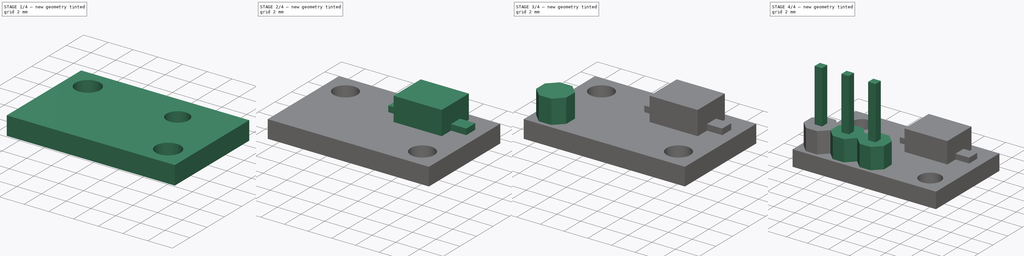
[diagram: build sequence overview — one tinted view per stage of 4, left to right]
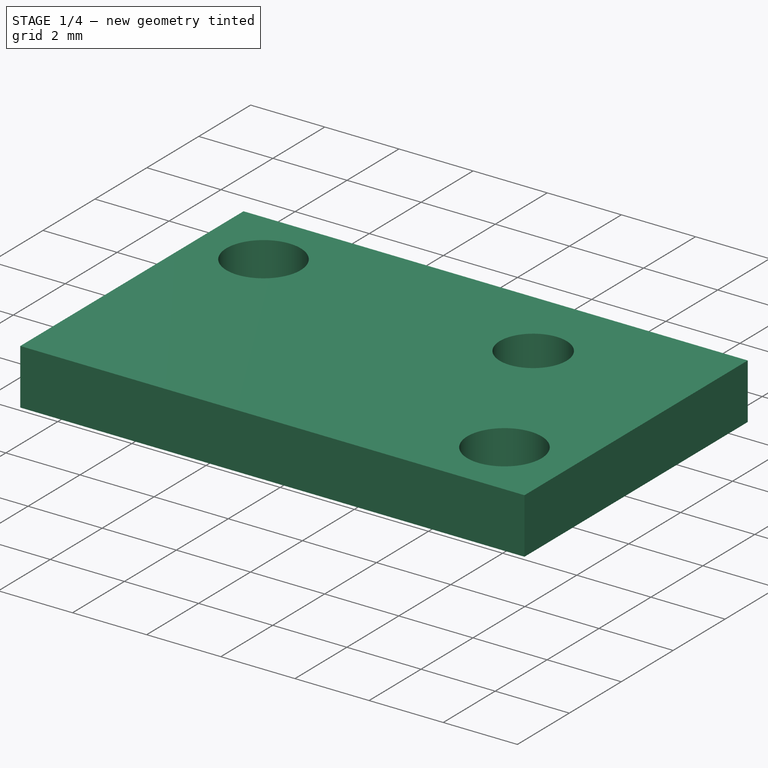
[diagram: stage 1 of 4 — iso view after this stage's code; geometry added in this stage tinted green]
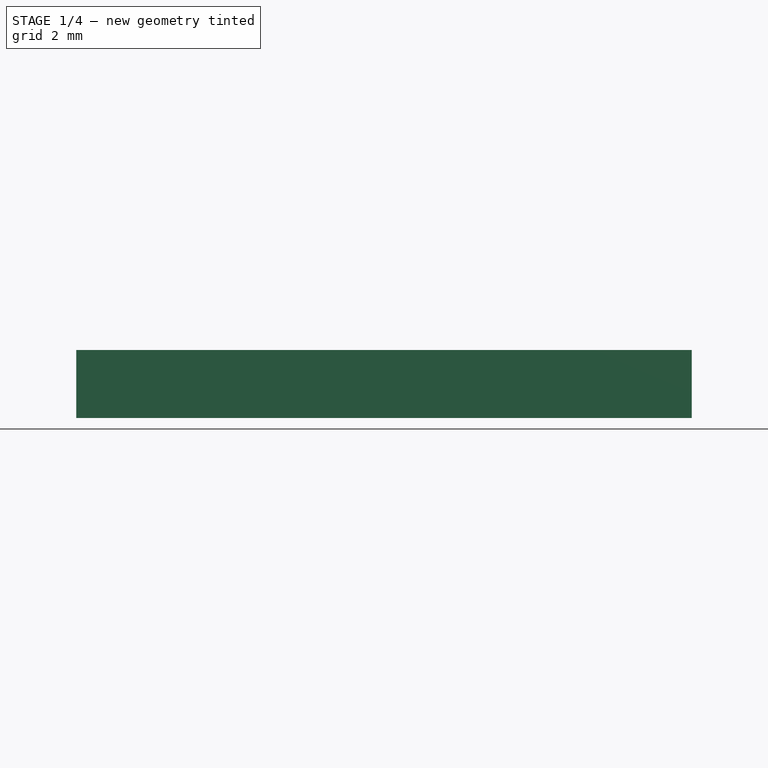
[diagram: stage 1 of 4 — front view after this stage's code; geometry added in this stage tinted green]
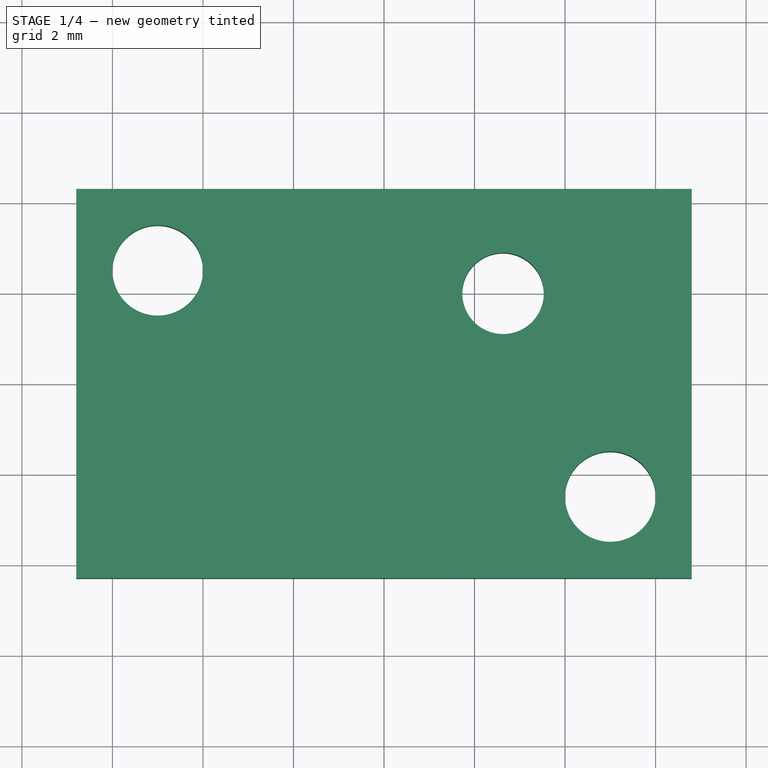
[diagram: stage 1 of 4 — top view after this stage's code; geometry added in this stage tinted green]
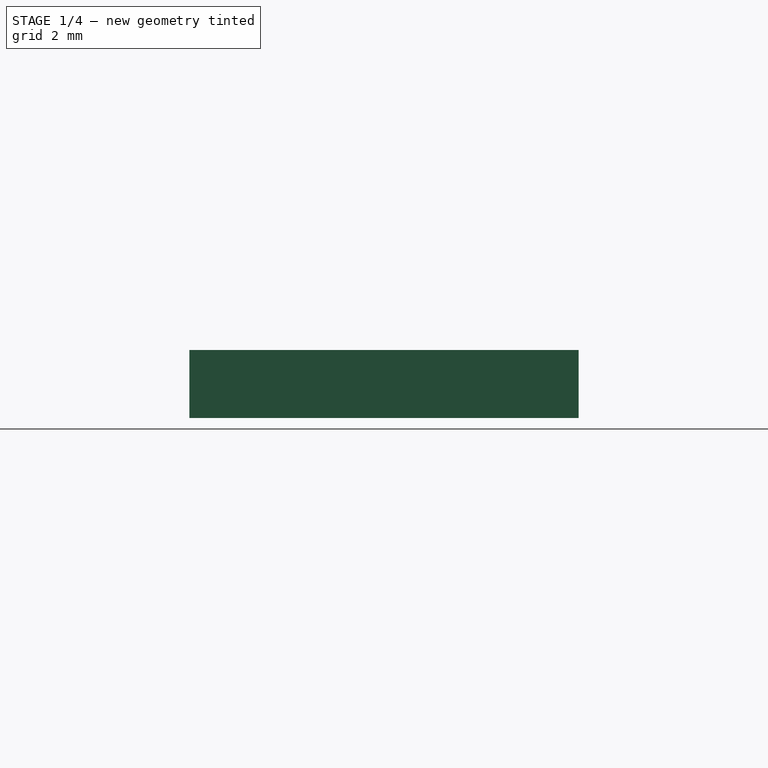
[diagram: stage 1 of 4 — right view after this stage's code; geometry added in this stage tinted green]
FCSTD DOCUMENT  (FreeCAD 0.18.4R)
Label: line_senzor_1
License: All rights reserved
LicenseURL: http://en.wikipedia.org/wiki/All_rights_reserved
objects: Sketcher::SketchObject×9, PartDesign::Pad×7, PartDesign::Pocket×2, PartDesign::LinearPattern×2, PartDesign::Body×1
note: 30 computed .brp shape members not serialized (recipe doc carries the construction recipe); baked Part::Feature solids carry a one-line shape summary decoded from their .brp

FEATURE [Sketcher::SketchObject] Sketch
  MapMode = 5
  Support = -> [XY_Plane]
  sketch-geometry (4):
    g0: LineSegment StartX=-6.8 StartY=4.3 StartZ=0 EndX=6.8 EndY=4.3 EndZ=0
    g1: LineSegment StartX=6.8 StartY=4.3 StartZ=0 EndX=6.8 EndY=-4.3 EndZ=0
    g2: LineSegment StartX=6.8 StartY=-4.3 StartZ=0 EndX=-6.8 EndY=-4.3 EndZ=0
    g3: LineSegment StartX=-6.8 StartY=-4.3 StartZ=0 EndX=-6.8 EndY=4.3 EndZ=0
  constraints (10):
    c: Coincident(g0,g1)
    c: Coincident(g1,g2)
    c: Coincident(g2,g3)
    c: Coincident(g3,g0)
    c: Horizontal(g2)
    c: Vertical(g1)
    c: Distance(g3) = 8.6
    c: Distance(g0) = 13.6
    c: Symmetric(g0,g0,g-2)
    c: Symmetric(g2,g0,g-1)
FEATURE [PartDesign::Pad] Pad
  Length = 1.5
  Length2 = 100
  Profile = -> Sketch
  Type = 0
FEATURE [Sketcher::SketchObject] Sketch001
  MapMode = 5
  Placement = pos=(0,0,1.5) rot=(0,0,1;0rad)
  Support = -> [Pad]
  sketch-geometry (6):
    g0: LineSegment [constr] StartX=-5 StartY=2.5 StartZ=0 EndX=5 EndY=2.5 EndZ=0
    g1: LineSegment [constr] StartX=5 StartY=2.5 StartZ=0 EndX=5 EndY=-2.5 EndZ=0
    g2: LineSegment [constr] StartX=5 StartY=-2.5 StartZ=0 EndX=-5 EndY=-2.5 EndZ=0
    g3: LineSegment [constr] StartX=-5 StartY=-2.5 StartZ=0 EndX=-5 EndY=2.5 EndZ=0
    g4: Circle CenterX=-5 CenterY=2.5 CenterZ=0 NormalX=0 NormalY=0 NormalZ=1 AngleXU=0 Radius=1
    g5: Circle CenterX=5 CenterY=-2.5 CenterZ=0 NormalX=0 NormalY=0 NormalZ=1 AngleXU=0 Radius=1
  constraints (14):
    c: Coincident(g0,g1)
    c: Coincident(g1,g2)
    c: Coincident(g2,g3)
    c: Coincident(g3,g0)
    c: Horizontal(g2)
    c: Vertical(g3)
    c: Symmetric(g0,g0,g-2)
    c: Symmetric(g0,g1,g-1)
    c: Coincident(g4,g0)
    c: Coincident(g5,g1)
    c: Distance(g1) = 5
    c: Distance(g2) = 10
    c: Radius(g5) = 1
    c: Equal(g5,g4)
FEATURE [PartDesign::Pocket] Pocket
  BaseFeature = -> Pad
  Length = 5
  Length2 = 100
  Profile = -> Sketch001
  Type = 0
FEATURE [Sketcher::SketchObject] Sketch002
  MapMode = 5
  Placement = pos=(0,0,0) rot=(1,0,0;3.14159rad)
  Support = -> [Pocket]
  expr: Constraints[0] = 13.8 / 2 - 4.27
  sketch-geometry (1):
    g0: Circle CenterX=2.63 CenterY=-1.99131 CenterZ=0 NormalX=0 NormalY=0 NormalZ=1 AngleXU=0 Radius=0.9
  constraints (3):
    c: DistanceX(g0) = 2.63
    c: DistanceY(g0) = -1.99131
    c: Radius(g0) = 0.9
FEATURE [PartDesign::Pocket] Pocket001
  BaseFeature = -> Pocket
  Length = 5
  Length2 = 100
  Profile = -> Sketch002
  Type = 0
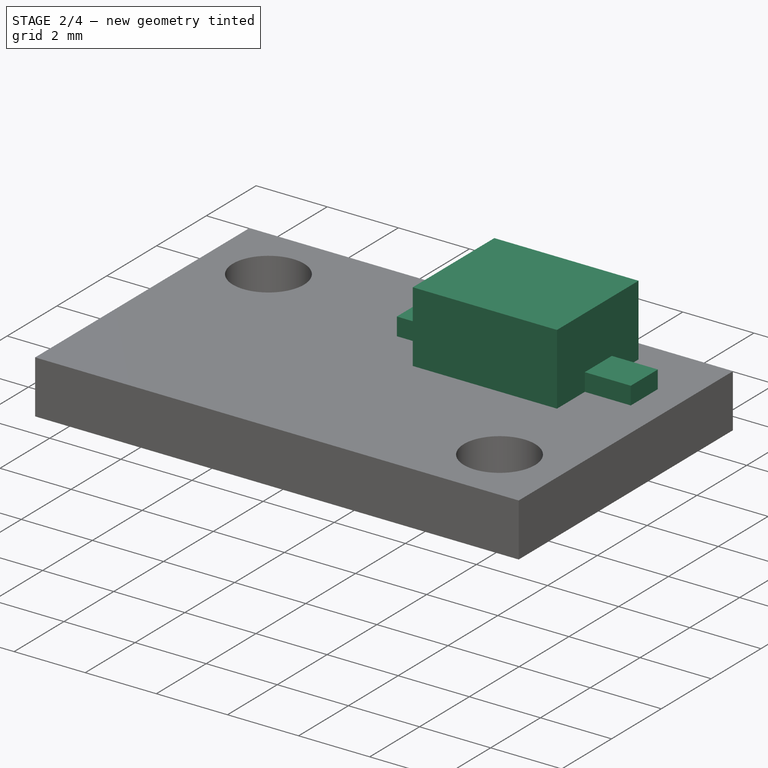
[diagram: stage 2 of 4 — iso view after this stage's code; geometry added in this stage tinted green]
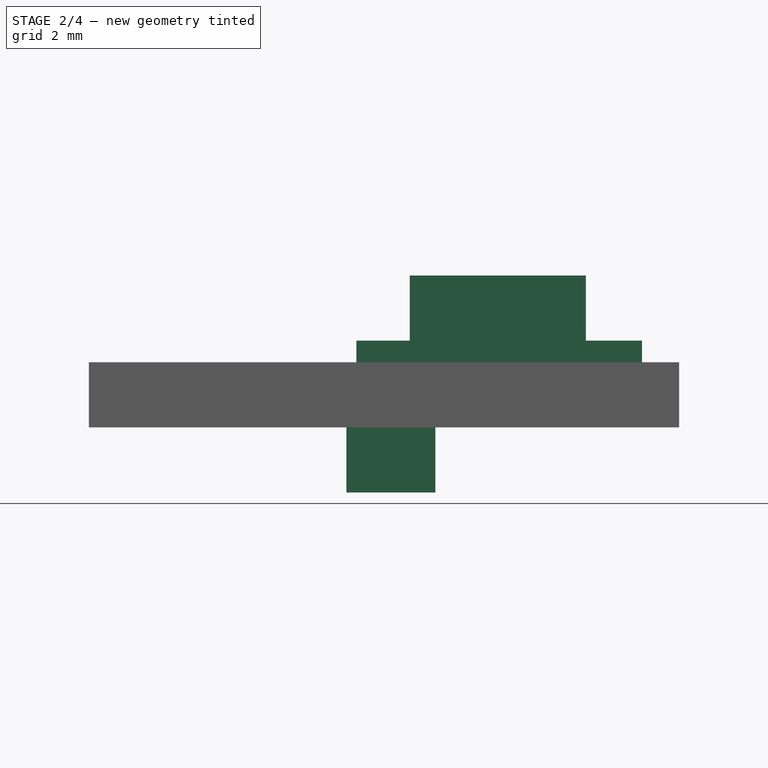
[diagram: stage 2 of 4 — front view after this stage's code; geometry added in this stage tinted green]
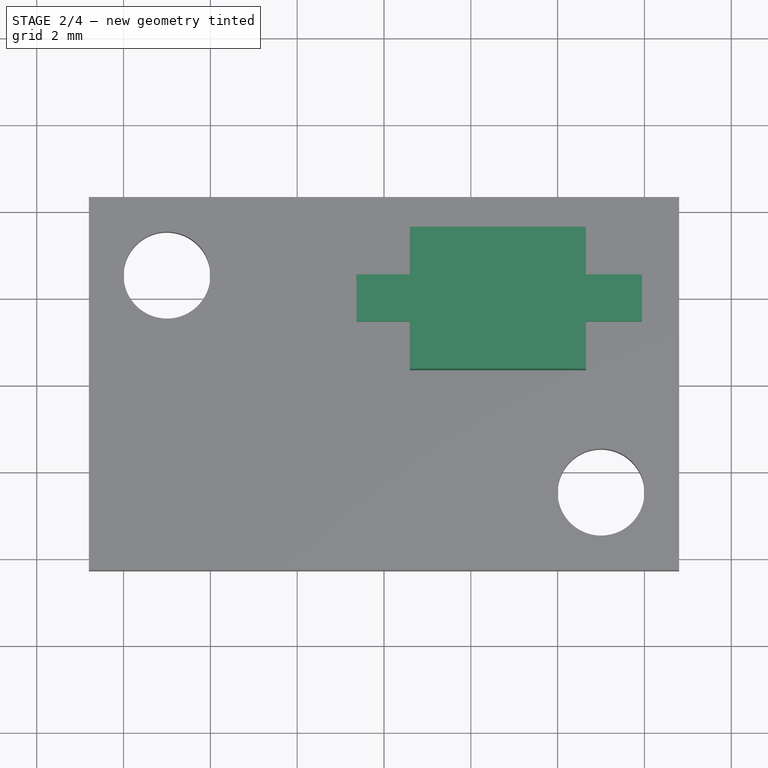
[diagram: stage 2 of 4 — top view after this stage's code; geometry added in this stage tinted green]
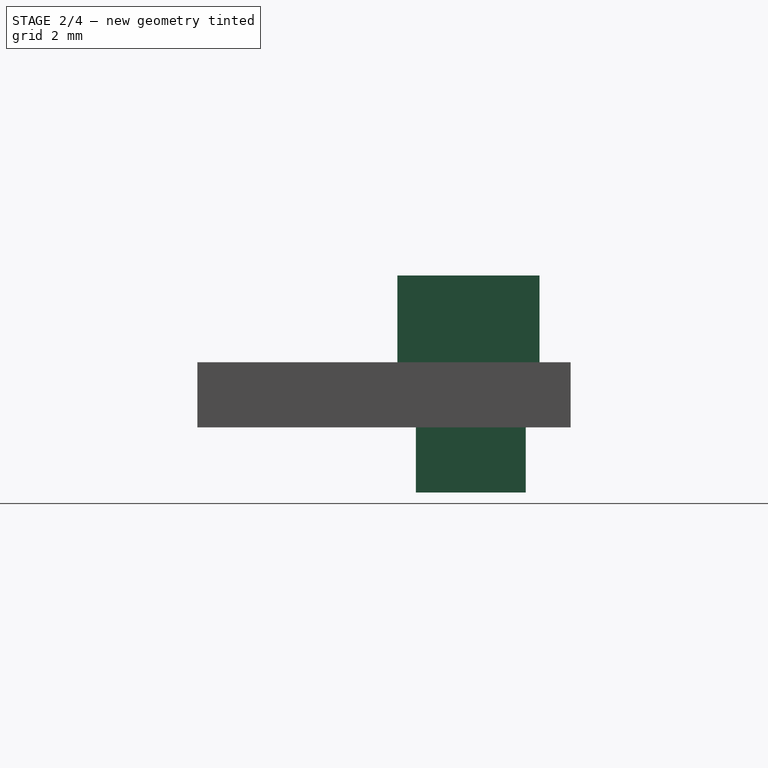
[diagram: stage 2 of 4 — right view after this stage's code; geometry added in this stage tinted green]
FEATURE [Sketcher::SketchObject] Sketch003
  MapMode = 5
  Placement = pos=(0,0,1.5) rot=(0,0,1;0rad)
  Support = -> [Pocket001]
  sketch-geometry (4):
    g0: LineSegment StartX=4.6494 StartY=0.307445 StartZ=0 EndX=0.594378 EndY=0.307445 EndZ=0
    g1: LineSegment StartX=0.594378 StartY=0.307445 StartZ=0 EndX=0.594378 EndY=3.58137 EndZ=0
    g2: LineSegment StartX=0.594378 StartY=3.58137 StartZ=0 EndX=4.6494 EndY=3.58137 EndZ=0
    g3: LineSegment StartX=4.6494 StartY=3.58137 StartZ=0 EndX=4.6494 EndY=0.307445 EndZ=0
  constraints (8):
    c: Coincident(g0,g1)
    c: Coincident(g1,g2)
    c: Coincident(g2,g3)
    c: Coincident(g3,g0)
    c: Horizontal(g0)
    c: Horizontal(g2)
    c: Vertical(g1)
    c: Vertical(g3)
FEATURE [PartDesign::Pad] Pad001
  BaseFeature = -> Pocket001
  Length = 2
  Length2 = 100
  Profile = -> Sketch003
  Type = 0
FEATURE [Sketcher::SketchObject] Sketch004
  MapMode = 5
  Placement = pos=(0,0,1.5) rot=(0,0,1;0rad)
  Support = -> [Pad001]
  sketch-geometry (8):
    g0: LineSegment StartX=-0.637004 StartY=2.51024 StartZ=0 EndX=0.729964 EndY=2.51024 EndZ=0
    g1: LineSegment StartX=0.729964 StartY=2.51024 StartZ=0 EndX=0.729964 EndY=1.42578 EndZ=0
    g2: LineSegment StartX=0.729964 StartY=1.42578 StartZ=0 EndX=-0.637004 EndY=1.42578 EndZ=0
    g3: LineSegment StartX=-0.637004 StartY=1.42578 StartZ=0 EndX=-0.637004 EndY=2.51024 EndZ=0
    g4: LineSegment StartX=4.5757 StartY=2.51024 StartZ=0 EndX=5.94267 EndY=2.51024 EndZ=0
    g5: LineSegment StartX=5.94267 StartY=2.51024 StartZ=0 EndX=5.94267 EndY=1.42578 EndZ=0
    g6: LineSegment StartX=5.94267 StartY=1.42578 StartZ=0 EndX=4.5757 EndY=1.42578 EndZ=0
    g7: LineSegment StartX=4.5757 StartY=1.42578 StartZ=0 EndX=4.5757 EndY=2.51024 EndZ=0
  constraints (19):
    c: Coincident(g0,g1)
    c: Coincident(g1,g2)
    c: Coincident(g2,g3)
    c: Coincident(g3,g0)
    c: Horizontal(g0)
    c: Horizontal(g2)
    c: Vertical(g1)
    c: Vertical(g3)
    c: Coincident(g4,g5)
    c: Coincident(g5,g6)
    c: Coincident(g6,g7)
    c: Coincident(g7,g4)
    c: Horizontal(g4)
    c: Horizontal(g6)
    c: Vertical(g5)
    c: Vertical(g7)
    c: PointOnObject(g4,g0)
    c: Equal(g3,g5)
    c: Equal(g4,g0)
FEATURE [PartDesign::Pad] Pad002
  BaseFeature = -> Pad001
  Length = 0.5
  Length2 = 100
  Profile = -> Sketch004
  Type = 0
FEATURE [Sketcher::SketchObject] Sketch005
  MapMode = 5
  Placement = pos=(0,0,0) rot=(1,0,0;3.14159rad)
  Support = -> [Pad002]
  expr: Constraints[13] = 0.5 / 43 * 13.6
  sketch-geometry (6):
    g0: LineSegment StartX=-0.86686 StartY=-0.735 StartZ=0 EndX=1.18314 EndY=-0.735 EndZ=0
    g1: LineSegment StartX=1.18314 StartY=-0.735 StartZ=0 EndX=1.18314 EndY=-3.265 EndZ=0
    g2: LineSegment StartX=1.18314 StartY=-3.265 StartZ=0 EndX=-0.86686 EndY=-3.265 EndZ=0
    g3: LineSegment StartX=-0.86686 StartY=-3.265 StartZ=0 EndX=-0.86686 EndY=-0.735 EndZ=0
    g4: LineSegment [constr] StartX=-0.86686 StartY=-0.735 StartZ=0 EndX=0.15814 EndY=-2 EndZ=0
    g5: LineSegment [constr] StartX=0.15814 StartY=-2 StartZ=0 EndX=1.18314 EndY=-3.265 EndZ=0
  constraints (17):
    c: Coincident(g0,g1)
    c: Coincident(g1,g2)
    c: Coincident(g2,g3)
    c: Coincident(g3,g0)
    c: Horizontal(g0)
    c: Horizontal(g2)
    c: Vertical(g1)
    c: Vertical(g3)
    c: Coincident(g4,g5)
    c: Coincident(g5,g1)
    c: Parallel(g4,g5)
    c: Coincident(g4,g0)
    c: Equal(g5,g4)
    c: DistanceX(g4) = 0.15814
    c: DistanceY(g4) = -2
    c: Distance(g0) = 2.05
    c: Distance(g1) = 2.53
FEATURE [PartDesign::Pad] Pad003
  BaseFeature = -> Pad002
  Length = 1.5
  Length2 = 100
  Profile = -> Sketch005
  Type = 0
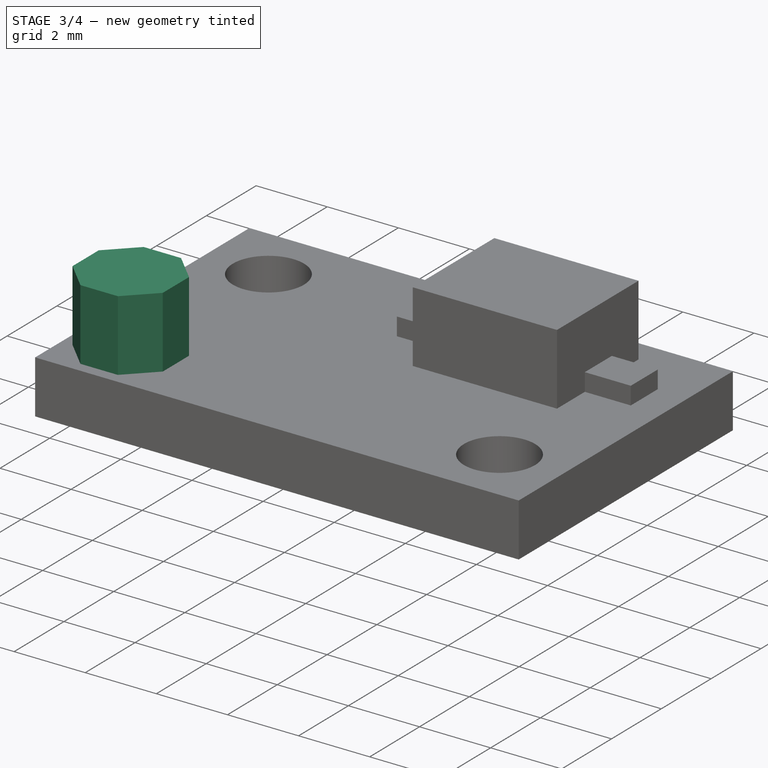
[diagram: stage 3 of 4 — iso view after this stage's code; geometry added in this stage tinted green]
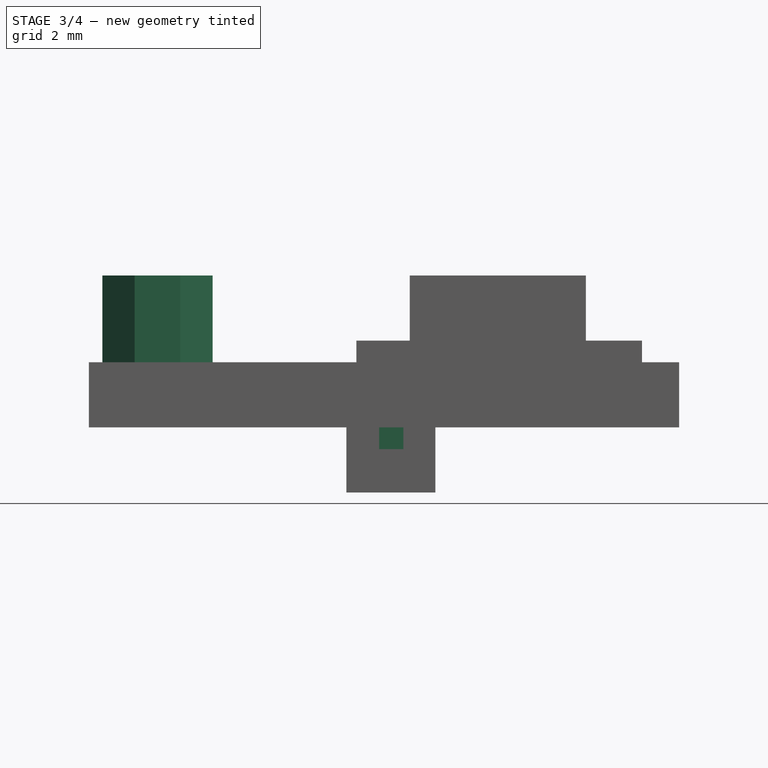
[diagram: stage 3 of 4 — front view after this stage's code; geometry added in this stage tinted green]
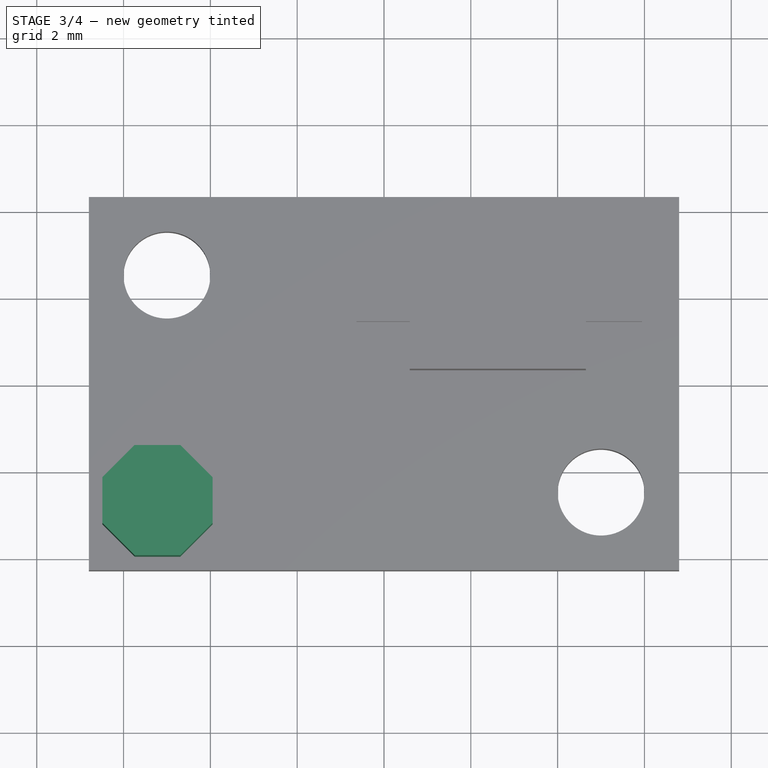
[diagram: stage 3 of 4 — top view after this stage's code; geometry added in this stage tinted green]
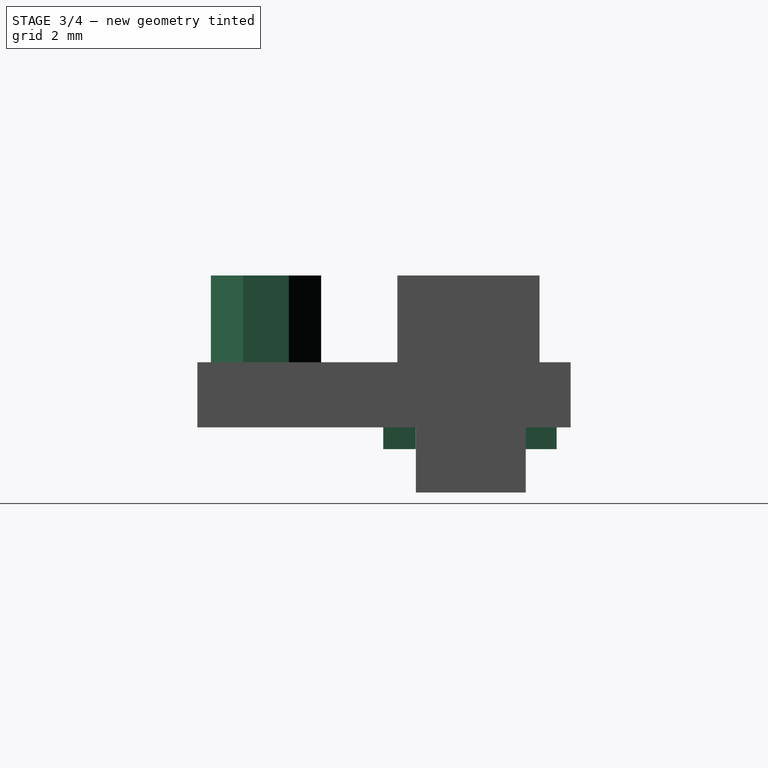
[diagram: stage 3 of 4 — right view after this stage's code; geometry added in this stage tinted green]
FEATURE [Sketcher::SketchObject] Sketch006
  MapMode = 5
  Placement = pos=(0,0,0) rot=(1,0,0;3.14159rad)
  Support = -> [Pad003]
  sketch-geometry (8):
    g0: LineSegment StartX=-0.111542 StartY=0.017882 StartZ=0 EndX=0.446388 EndY=0.017882 EndZ=0
    g1: LineSegment StartX=0.446388 StartY=0.017882 StartZ=0 EndX=0.446388 EndY=-0.732085 EndZ=0
    g2: LineSegment StartX=0.446388 StartY=-0.732085 StartZ=0 EndX=-0.111542 EndY=-0.732085 EndZ=0
    g3: LineSegment StartX=-0.111542 StartY=-0.732085 StartZ=0 EndX=-0.111542 EndY=0.017882 EndZ=0
    g4: LineSegment StartX=-0.111542 StartY=-3.22688 StartZ=0 EndX=0.446388 EndY=-3.22688 EndZ=0
    g5: LineSegment StartX=0.446388 StartY=-3.22688 StartZ=0 EndX=0.446388 EndY=-3.97685 EndZ=0
    g6: LineSegment StartX=0.446388 StartY=-3.97685 StartZ=0 EndX=-0.111542 EndY=-3.97685 EndZ=0
    g7: LineSegment StartX=-0.111542 StartY=-3.97685 StartZ=0 EndX=-0.111542 EndY=-3.22688 EndZ=0
  constraints (19):
    c: Coincident(g0,g1)
    c: Coincident(g1,g2)
    c: Coincident(g2,g3)
    c: Coincident(g3,g0)
    c: Horizontal(g0)
    c: Horizontal(g2)
    c: Vertical(g1)
    c: Vertical(g3)
    c: Coincident(g4,g5)
    c: Coincident(g5,g6)
    c: Coincident(g6,g7)
    c: Coincident(g7,g4)
    c: Horizontal(g4)
    c: Horizontal(g6)
    c: Vertical(g5)
    c: Vertical(g7)
    c: PointOnObject(g1,g5)
    c: Equal(g1,g5)
    c: Equal(g6,g0)
FEATURE [PartDesign::Pad] Pad004
  BaseFeature = -> Pad003
  Length = 0.5
  Length2 = 100
  Profile = -> Sketch006
  Type = 0
FEATURE [Sketcher::SketchObject] Sketch007
  MapMode = 5
  Placement = pos=(0,0,1.5) rot=(0,0,1;0rad)
  Support = -> [Pad004]
  expr: Constraints[26] = 2.54
  expr: Constraints[24] = -(13.6 / 2 - 5 / 43 * 13.6)
  expr: Constraints[25] = -(8.6 / 2 - 5 / 43 * 13.6)
  sketch-geometry (9):
    g0: LineSegment StartX=-4.69255 StartY=-1.4486 StartZ=0 EndX=-5.74466 EndY=-1.4486 EndZ=0
    g1: LineSegment StartX=-5.74466 StartY=-1.4486 StartZ=0 EndX=-6.4886 EndY=-2.19255 EndZ=0
    g2: LineSegment StartX=-6.4886 StartY=-2.19255 StartZ=0 EndX=-6.4886 EndY=-3.24466 EndZ=0
    g3: LineSegment StartX=-6.4886 StartY=-3.24466 StartZ=0 EndX=-5.74466 EndY=-3.9886 EndZ=0
    g4: LineSegment StartX=-5.74466 StartY=-3.9886 StartZ=0 EndX=-4.69255 EndY=-3.9886 EndZ=0
    g5: LineSegment StartX=-4.69255 StartY=-3.9886 StartZ=0 EndX=-3.9486 EndY=-3.24466 EndZ=0
    g6: LineSegment StartX=-3.9486 StartY=-3.24466 StartZ=0 EndX=-3.9486 EndY=-2.19255 EndZ=0
    g7: LineSegment StartX=-3.9486 StartY=-2.19255 StartZ=0 EndX=-4.69255 EndY=-1.4486 EndZ=0
    g8: Circle [constr] CenterX=-5.2186 CenterY=-2.7186 CenterZ=0 NormalX=0 NormalY=0 NormalZ=1 AngleXU=0 Radius=1.37464
  constraints (21):
    c: Coincident(g0,g1)
    c: Coincident(g1,g2)
    c: Coincident(g2,g3)
    c: Coincident(g3,g4)
    c: Coincident(g4,g5)
    c: Coincident(g5,g6)
    c: Coincident(g6,g7)
    c: Coincident(g7,g0)
    c: Equal(g0, g1-g7) x7
    c: PointOnObject(g0,g8)
    c: PointOnObject(g1,g8)
    c: PointOnObject(g2,g8)
    c: PointOnObject(g3,g8)
    c: PointOnObject(g4,g8)
    c: PointOnObject(g5,g8)
    c: PointOnObject(g6,g8)
    c: PointOnObject(g7,g8)
    c: Horizontal(g0)
    c: DistanceX(g8) = -5.2186
    c: DistanceY(g8) = -2.7186
    c: Distance(g0,g3) = 2.54
FEATURE [PartDesign::Pad] Pad005
  BaseFeature = -> Pad004
  Length = 2
  Length2 = 100
  Profile = -> Sketch007
  Type = 0
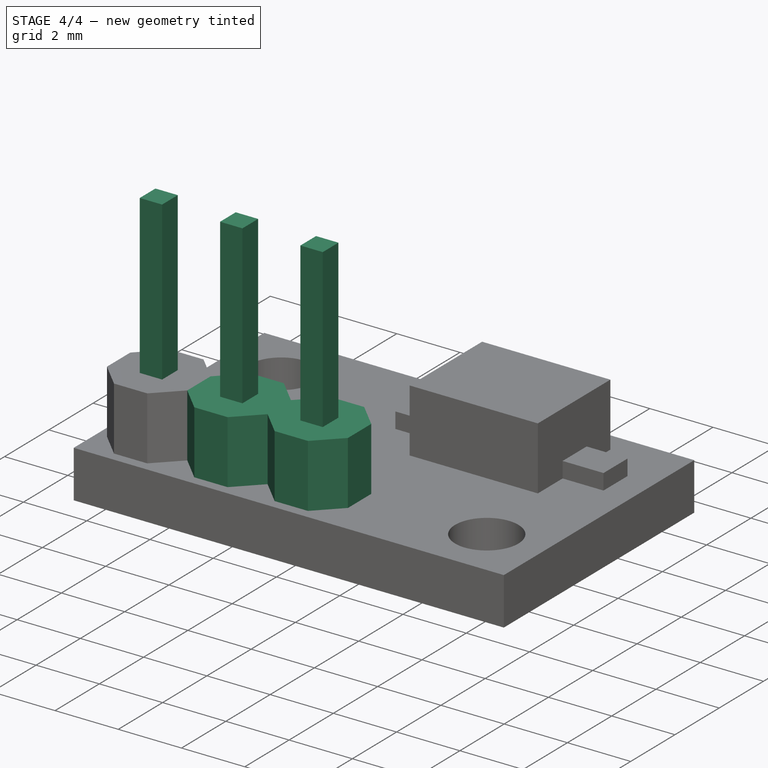
[diagram: stage 4 of 4 — iso view after this stage's code; geometry added in this stage tinted green]
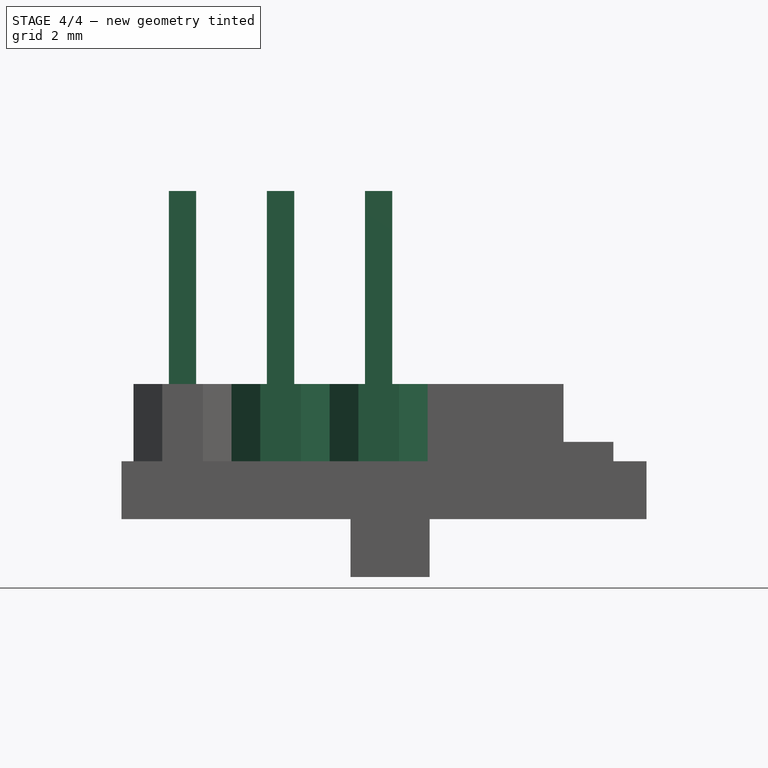
[diagram: stage 4 of 4 — front view after this stage's code; geometry added in this stage tinted green]
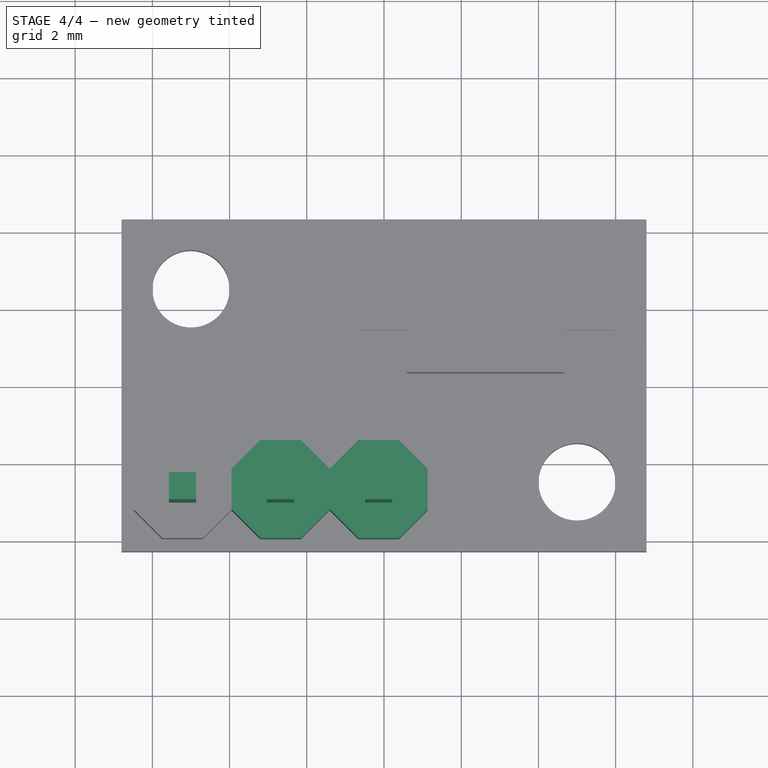
[diagram: stage 4 of 4 — top view after this stage's code; geometry added in this stage tinted green]
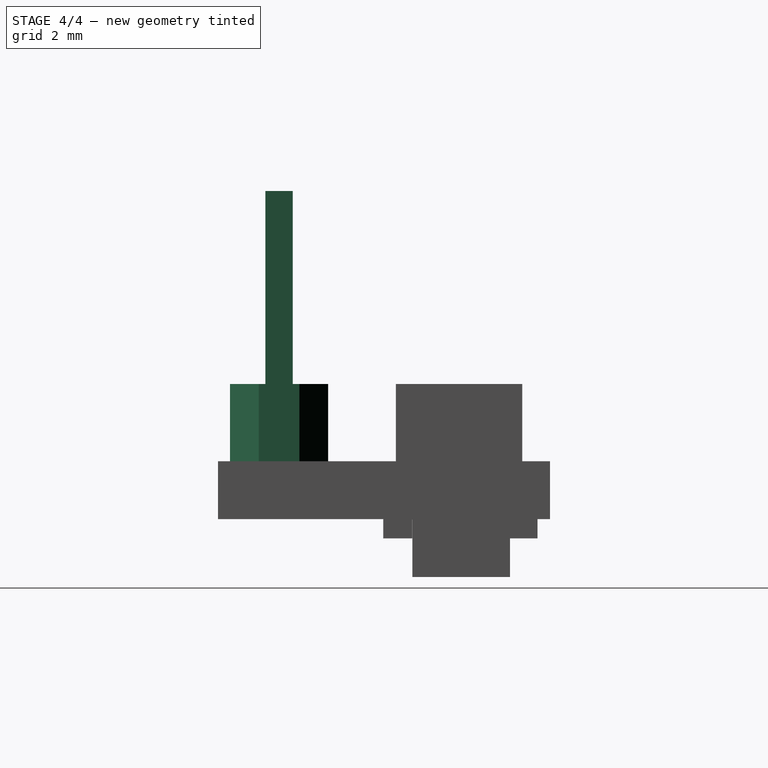
[diagram: stage 4 of 4 — right view after this stage's code; geometry added in this stage tinted green]
FEATURE [Sketcher::SketchObject] Sketch008
  MapMode = 5
  Placement = pos=(0,0,3.5) rot=(0,0,1;0rad)
  Support = -> [Pad005]
  expr: Constraints[16] = -(8.6 / 2 - 5 / 43 * 13.6)
  expr: Constraints[15] = -(13.6 / 2 - 5 / 43 * 13.6)
  sketch-geometry (6):
    g0: LineSegment StartX=-5.57216 StartY=-2.36505 StartZ=0 EndX=-4.86505 EndY=-2.36505 EndZ=0
    g1: LineSegment StartX=-4.86505 StartY=-2.36505 StartZ=0 EndX=-4.86505 EndY=-3.07216 EndZ=0
    g2: LineSegment StartX=-4.86505 StartY=-3.07216 StartZ=0 EndX=-5.57216 EndY=-3.07216 EndZ=0
    g3: LineSegment StartX=-5.57216 StartY=-3.07216 StartZ=0 EndX=-5.57216 EndY=-2.36505 EndZ=0
    g4: LineSegment [constr] StartX=-5.57216 StartY=-2.36505 StartZ=0 EndX=-5.2186 EndY=-2.7186 EndZ=0
    g5: LineSegment [constr] StartX=-5.2186 StartY=-2.7186 StartZ=0 EndX=-4.86505 EndY=-3.07216 EndZ=0
  constraints (17):
    c: Coincident(g0,g1)
    c: Coincident(g1,g2)
    c: Coincident(g2,g3)
    c: Coincident(g3,g0)
    c: Horizontal(g0)
    c: Horizontal(g2)
    c: Vertical(g1)
    c: Vertical(g3)
    c: Equal(g0,g3)
    c: Coincident(g4,g5)
    c: Coincident(g5,g1)
    c: Coincident(g4,g0)
    c: Parallel(g4,g5)
    c: Equal(g4,g5)
    c: Distance(g0,g1) = 1
    c: DistanceX(g4) = -5.2186
    c: DistanceY(g4) = -2.7186
FEATURE [PartDesign::Pad] Pad006
  BaseFeature = -> Pad005
  Length = 5
  Length2 = 100
  Profile = -> Sketch008
  Type = 0
FEATURE [PartDesign::LinearPattern] LinearPattern
  BaseFeature = -> Pad006
  Direction = -> Sketch007 [H_Axis]
  Length = 5.08
  Occurrences = 3
  Originals = -> [Pad005]
  expr: Length = 2.54 * 2
FEATURE [PartDesign::LinearPattern] LinearPattern001
  BaseFeature = -> LinearPattern
  Direction = -> Sketch008 [H_Axis]
  Length = 5.08
  Occurrences = 3
  Originals = -> [Pad006]
  expr: Length = 2.54 * 2
FEATURE [PartDesign::Body] Body
  Group = -> [Sketch,Pad,Sketch001,Pocket,Sketch002,Pocket001,Sketch003,Pad001,Sketch004,Pad002,Sketch005,Pad003,Sketch006,Pad004,Sketch007,Pad005,Sketch008,Pad006,LinearPattern,LinearPattern001]
  Origin = -> Origin
  Tip = -> LinearPattern001
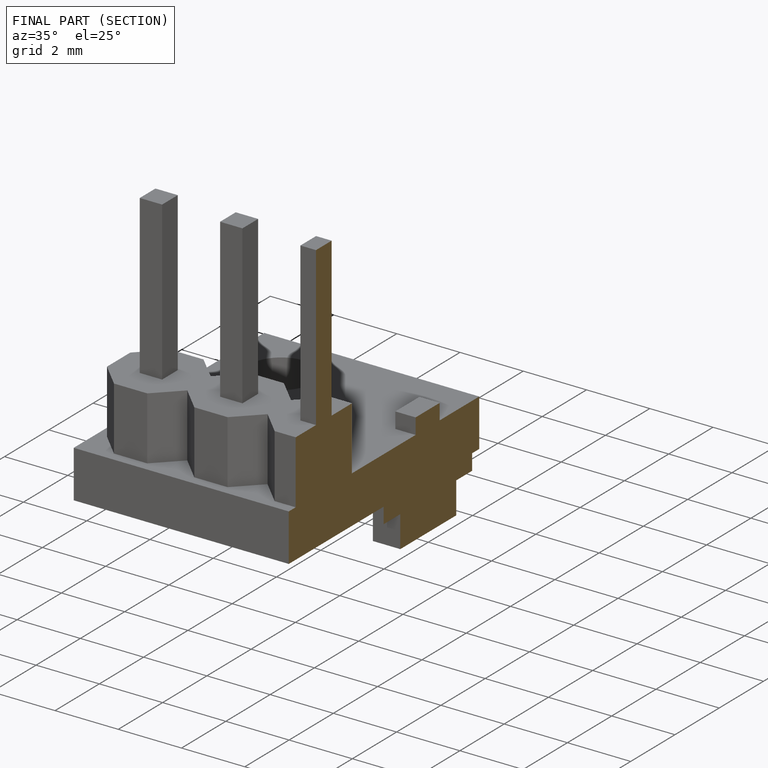
[diagram: finished part — half-section view (interior)]
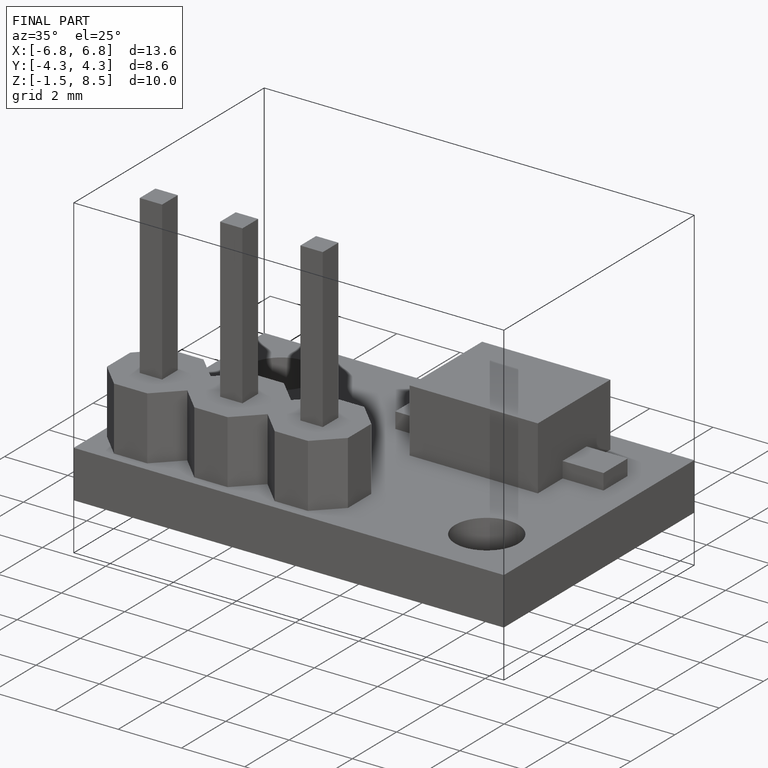
[diagram: finished part — iso view with bounding-box wireframe]
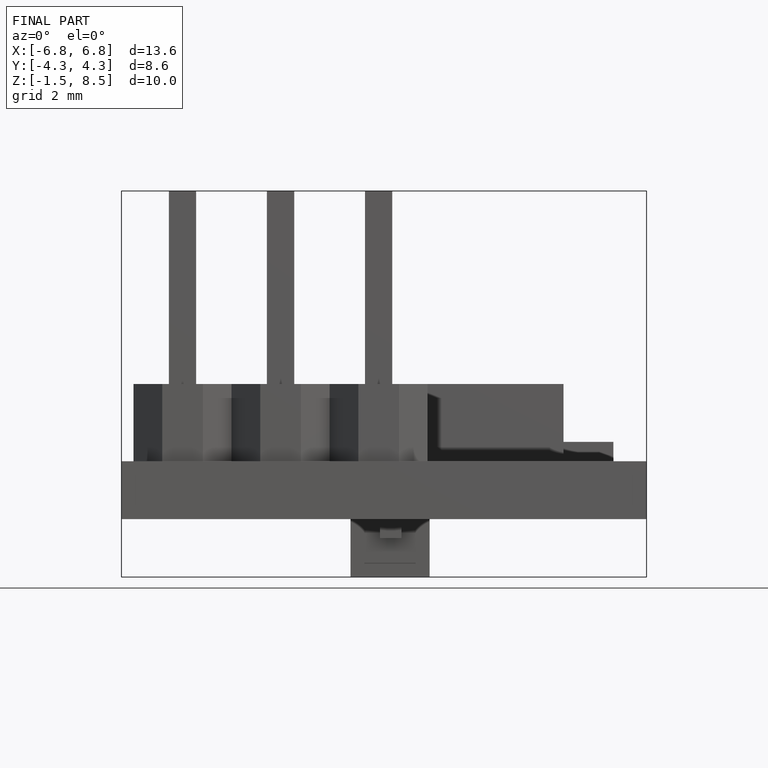
[diagram: finished part — front view with bounding-box wireframe]
